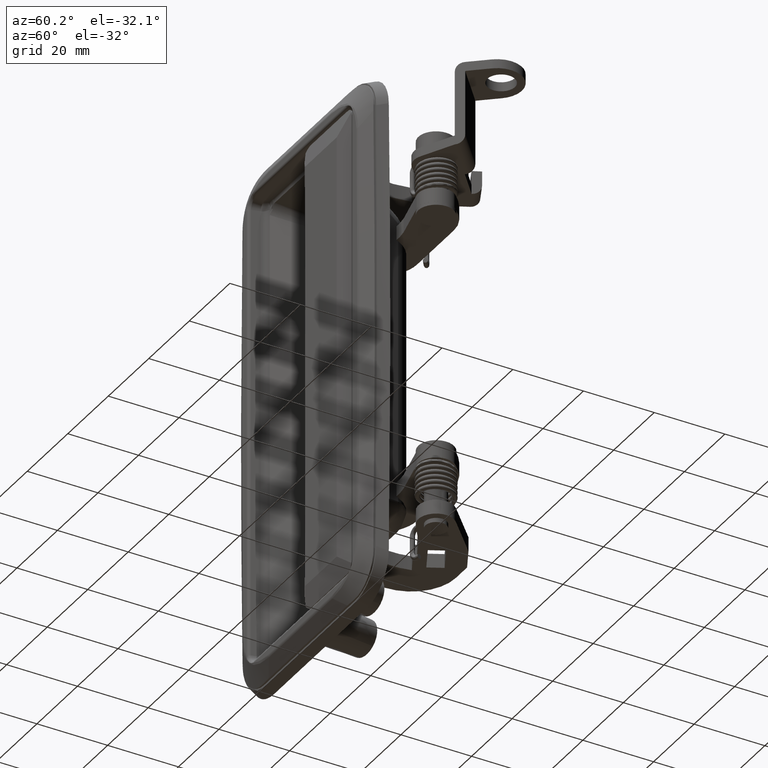
[diagram: clean part render]
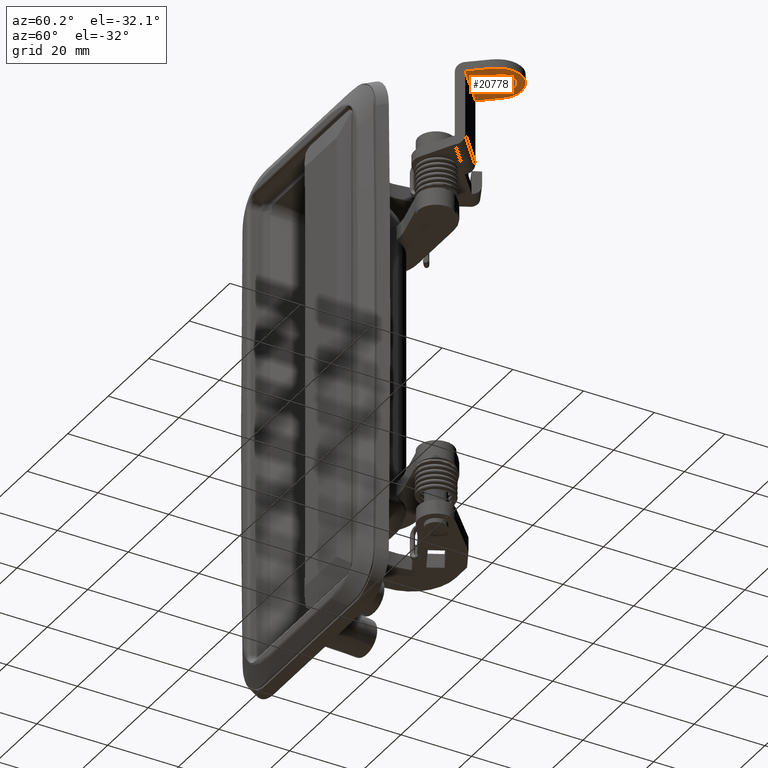
[diagram: same view with one face highlighted and labeled with its STEP entity id]
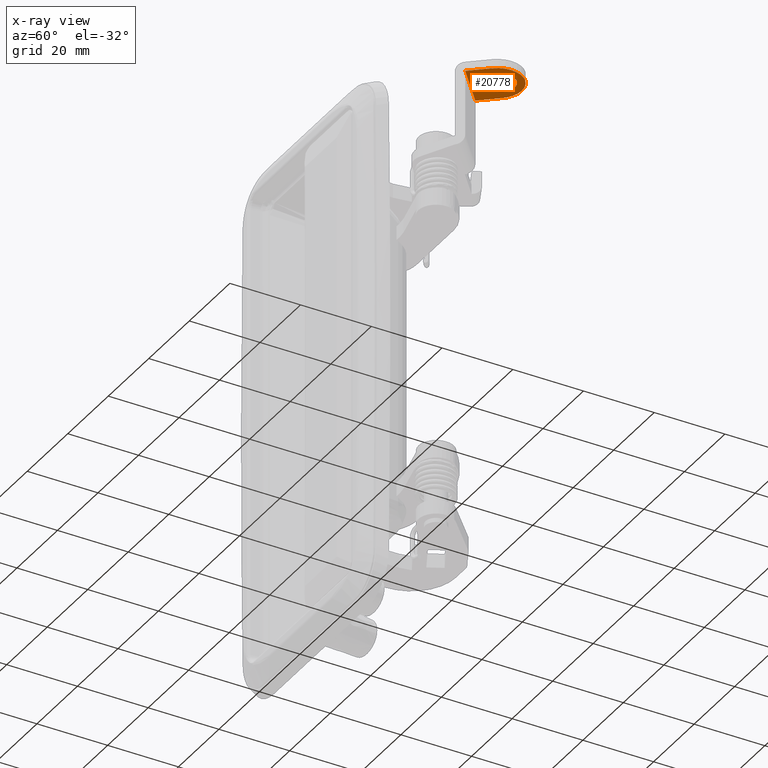
[diagram: x-ray of the same camera — body ghosted, the highlighted face saturated]
A machine part, auxiliary view. The second image highlights one B-rep face of the part: STEP entity #20778.
The next image is the same camera in x-ray: the body ghosted, the highlighted face saturated — about 0% of this face is hidden behind the body in this view.
In plain terms, the highlighted face is a freeform B-spline surface patch.
Its self-contained STEP definition (entity closure, byte-faithful):
#19741=CARTESIAN_POINT('',(44.855100000000867,28.992997394179511,69.750000000000000));
#19742=VERTEX_POINT('',#19741);
#19743=CARTESIAN_POINT('',(45.879717753151347,26.358197920806852,69.749999999975500));
#19744=VERTEX_POINT('',#19743);
#19745=CARTESIAN_POINT('',(44.855100000000867,28.992997394179511,69.750000000000000));
#19746=CARTESIAN_POINT('',(44.854572204642288,28.480640741781230,69.749999999995239));
#19747=CARTESIAN_POINT('',(45.048051156509118,27.516841556850569,69.749999999986272));
#19748=CARTESIAN_POINT('',(45.574073892312583,26.691269955914219,69.749999999978641));
#19749=CARTESIAN_POINT('',(45.879717753151347,26.358197920806852,69.749999999975500));
#19750=B_SPLINE_CURVE_WITH_KNOTS('',3,(#19745,#19746,#19747,#19748,#19749),.UNSPECIFIED.,.F.,.U.,(4,1,4),(0.000000051399220,1.536865023269515,2.892945393794267),.UNSPECIFIED.);
#19751=EDGE_CURVE('',#19742,#19744,#19750,.T.);
#19753=CARTESIAN_POINT('',(48.755100000000013,32.893000000000001,69.750000000000000));
#19754=VERTEX_POINT('',#19753);
#19755=CARTESIAN_POINT('',(48.755100000000013,32.893000000000001,69.750000000000000));
#19756=CARTESIAN_POINT('',(48.372200903307487,32.893179512731940,69.749999999999957));
#19757=CARTESIAN_POINT('',(47.734177144709442,32.798217729445632,69.750000000000114));
#19758=CARTESIAN_POINT('',(46.815914325596061,32.417902411356273,69.750000000000000));
#19759=CARTESIAN_POINT('',(45.954592091695147,31.795610905570530,69.750000000000000));
#19760=CARTESIAN_POINT('',(45.318063914322323,30.937416628721159,69.749999999999957));
#19761=CARTESIAN_POINT('',(44.937549699566823,29.950126904879980,69.750000000000071));
#19762=CARTESIAN_POINT('',(44.854982580710441,29.343981229636562,69.750000000000000));
#19763=CARTESIAN_POINT('',(44.855100000000867,28.992997394179511,69.750000000000000));
#19764=B_SPLINE_CURVE_WITH_KNOTS('',3,(#19755,#19756,#19757,#19758,#19759,#19760,#19761,#19762,#19763),.UNSPECIFIED.,.F.,.U.,(4,1,1,1,1,1,4),(0.000000156050804,1.148663109510675,1.914458710336270,2.967423935932709,4.307518243344466,5.073311903406835,6.126260871629324),.UNSPECIFIED.);
#19765=EDGE_CURVE('',#19754,#19742,#19764,.T.);
#19767=CARTESIAN_POINT('',(51.630482246848651,31.627802079193149,69.749999999975500));
#19768=VERTEX_POINT('',#19767);
#19769=CARTESIAN_POINT('',(51.630482246848651,31.627802079193149,69.749999999975500));
#19770=CARTESIAN_POINT('',(51.334868296005887,31.950830915955869,69.749999999978016));
#19771=CARTESIAN_POINT('',(50.687283390419779,32.453516932797847,69.749999999983473));
#19772=CARTESIAN_POINT('',(49.664451807296807,32.826527778760749,69.749999999992269));
#19773=CARTESIAN_POINT('',(49.024531578541321,32.893023226514323,69.749999999997883));
#19774=CARTESIAN_POINT('',(48.755100000000013,32.893000000000001,69.750000000000000));
#19775=B_SPLINE_CURVE_WITH_KNOTS('',3,(#19769,#19770,#19771,#19772,#19773,#19774),.UNSPECIFIED.,.F.,.U.,(4,1,1,4),(0.000000055470040,1.313548355360385,2.424985014419943,3.233313333999915),.UNSPECIFIED.);
#19776=EDGE_CURVE('',#19768,#19754,#19775,.T.);
#19846=CARTESIAN_POINT('',(48.755100000000013,25.093000000000000,69.750000000000000));
#19847=VERTEX_POINT('',#19846);
#19848=CARTESIAN_POINT('',(45.879717753151347,26.358197920806852,69.749999999975500));
#19849=CARTESIAN_POINT('',(46.129902712792621,26.084934860389069,69.749999999977689));
#19850=CARTESIAN_POINT('',(46.630035670955927,25.675419124001539,69.749999999981782));
#19851=CARTESIAN_POINT('',(47.610168892259978,25.213410919190750,69.749999999990351));
#19852=CARTESIAN_POINT('',(48.317220964179619,25.092717744503240,69.749999999996078));
#19853=CARTESIAN_POINT('',(48.755100000000013,25.093000000000000,69.750000000000000));
#19854=B_SPLINE_CURVE_WITH_KNOTS('',3,(#19848,#19849,#19850,#19851,#19852,#19853),.UNSPECIFIED.,.F.,.U.,(4,1,1,4),(0.000000055469990,1.111464423106240,1.919765034118517,3.233313333999907),.UNSPECIFIED.);
#19855=EDGE_CURVE('',#19744,#19847,#19854,.T.);
#19892=CARTESIAN_POINT('',(52.655099999999138,28.993002605820440,69.750000000000000));
#19893=VERTEX_POINT('',#19892);
#19894=CARTESIAN_POINT('',(52.655099999999138,28.993002605820440,69.750000000000000));
#19895=CARTESIAN_POINT('',(52.655167072373828,29.324481812350751,69.749999999997058));
#19896=CARTESIAN_POINT('',(52.566275724637052,30.017562445110570,69.749999999990365));
#19897=CARTESIAN_POINT('',(52.192461845296727,30.916569451717180,69.749999999982165));
#19898=CARTESIAN_POINT('',(51.813719372189773,31.427861998738852,69.749999999977447));
#19899=CARTESIAN_POINT('',(51.630482246848651,31.627802079193149,69.749999999975500));
#19900=B_SPLINE_CURVE_WITH_KNOTS('',3,(#19894,#19895,#19896,#19897,#19898,#19899),.UNSPECIFIED.,.F.,.U.,(4,1,1,4),(0.000000051399720,0.994460980333550,2.079303232417504,2.892945393794322),.UNSPECIFIED.);
#19901=EDGE_CURVE('',#19893,#19768,#19900,.T.);
#19903=CARTESIAN_POINT('',(48.755100000000013,25.093000000000000,69.750000000000000));
#19904=CARTESIAN_POINT('',(49.074172418368249,25.092928852754682,69.750000000000057));
#19905=CARTESIAN_POINT('',(49.648464320256089,25.163874178708230,69.749999999999758));
#19906=CARTESIAN_POINT('',(50.403140212330179,25.433925871448750,69.750000000000227));
#19907=CARTESIAN_POINT('',(51.039506334803463,25.804820132643410,69.749999999999943));
#19908=CARTESIAN_POINT('',(51.597849676007250,26.286465754327580,69.750000000000014));
#19909=CARTESIAN_POINT('',(52.150325562026708,26.994077447880031,69.749999999999957));
#19910=CARTESIAN_POINT('',(52.555403788051827,27.908187792634479,69.750000000000000));
#19911=CARTESIAN_POINT('',(52.655206508442852,28.642023433421340,69.749999999999957));
#19912=CARTESIAN_POINT('',(52.655099999999138,28.993002605820440,69.750000000000000));
#19913=B_SPLINE_CURVE_WITH_KNOTS('',3,(#19903,#19904,#19905,#19906,#19907,#19908,#19909,#19910,#19911,#19912),.UNSPECIFIED.,.F.,.U.,(4,1,1,1,1,1,1,4),(0.000000156053880,0.957227897716240,1.723018267150602,2.393110199053564,3.158835745155892,3.924614588197220,5.073311903407009,6.126260871629288),.UNSPECIFIED.);
#19914=EDGE_CURVE('',#19847,#19893,#19913,.T.);
#20690=CARTESIAN_POINT('',(49.167973088738599,18.594694321446202,69.750000000000000));
#20691=VERTEX_POINT('',#20690);
#20704=CARTESIAN_POINT('',(38.443154870225037,27.593520123031450,69.750000000000000));
#20705=VERTEX_POINT('',#20704);
#20711=CARTESIAN_POINT('',(49.167973088738599,18.594694321446202,69.750000000000000));
#20712=CARTESIAN_POINT('',(38.443154870225037,27.593520123031450,69.750000000000000));
#20713=QUASI_UNIFORM_CURVE('',1,(#20711,#20712),.UNSPECIFIED.,.F.,.U.);
#20714=EDGE_CURVE('',#20691,#20705,#20713,.T.);
#20719=CARTESIAN_POINT('',(55.944186559190058,17.763939732573998,69.750000000000000));
#20720=CARTESIAN_POINT('',(55.944186559190058,36.057173502685977,69.750000000000000));
#20721=CARTESIAN_POINT('',(37.610565727903037,17.763939732573998,69.750000000000000));
#20722=CARTESIAN_POINT('',(37.610565727903037,36.057173502685977,69.750000000000000));
#20723=B_SPLINE_SURFACE_WITH_KNOTS('',1,1,((#20719,#20721),(#20720,#20722)),.UNSPECIFIED.,.F.,.F.,.U.,(2,2),(2,2),(0.0,18.293233770111978),(0.0,18.333620831287021),.UNSPECIFIED.);
#20724=CARTESIAN_POINT('',(53.474599923372701,23.726999908681400,69.750000000000000));
#20725=VERTEX_POINT('',#20724);
#20726=CARTESIAN_POINT('',(49.167973088738599,18.594694321446202,69.750000000000000));
#20727=CARTESIAN_POINT('',(53.474599923372701,23.726999908681400,69.750000000000000));
#20728=QUASI_UNIFORM_CURVE('',1,(#20726,#20727),.UNSPECIFIED.,.F.,.U.);
#20729=EDGE_CURVE('',#20691,#20725,#20728,.T.);
#20730=ORIENTED_EDGE('',*,*,#20729,.F.);
#20731=ORIENTED_EDGE('',*,*,#20714,.T.);
#20732=CARTESIAN_POINT('',(42.706096217814462,32.673679734979899,69.750000000000000));
#20733=VERTEX_POINT('',#20732);
#20734=CARTESIAN_POINT('',(42.706096217814462,32.673679734979899,69.750000000000000));
#20735=CARTESIAN_POINT('',(38.443154870225037,27.593520123031450,69.750000000000000));
#20736=QUASI_UNIFORM_CURVE('',1,(#20734,#20735),.UNSPECIFIED.,.F.,.U.);
#20737=EDGE_CURVE('',#20733,#20705,#20736,.T.);
#20738=ORIENTED_EDGE('',*,*,#20737,.F.);
#20739=CARTESIAN_POINT('',(52.585624013766036,33.610994566540192,69.749999999999986));
#20740=VERTEX_POINT('',#20739);
#20741=CARTESIAN_POINT('',(52.585624013766036,33.610994566540192,69.749999999999986));
#20742=CARTESIAN_POINT('',(52.143832794127327,33.978228358537272,69.749999999999957));
#20743=CARTESIAN_POINT('',(51.266598701432443,34.540425371722257,69.750000000000099));
#20744=CARTESIAN_POINT('',(50.018706562409498,34.993880233847868,69.750000000000000));
#20745=CARTESIAN_POINT('',(48.831397262416878,35.220422189003592,69.749999999999844));
#20746=CARTESIAN_POINT('',(47.648476492352870,35.254180149454839,69.750000000000469));
#20747=CARTESIAN_POINT('',(46.481320375753107,35.063030105028183,69.749999999999076));
#20748=CARTESIAN_POINT('',(45.414608047359842,34.714028032256792,69.750000000001805));
#20749=CARTESIAN_POINT('',(44.099528995461860,34.056263010652813,69.749999999998352));
#20750=CARTESIAN_POINT('',(43.198418025767118,33.273026418591563,69.750000000001108));
#20751=CARTESIAN_POINT('',(42.706096217814462,32.673679734979899,69.750000000000000));
#20752=B_SPLINE_CURVE_WITH_KNOTS('',3,(#20741,#20742,#20743,#20744,#20745,#20746,#20747,#20748,#20749,#20750,#20751),.UNSPECIFIED.,.F.,.U.,(4,1,1,1,1,1,1,1,4),(0.000000205684765,1.723456845466329,3.102229959260190,3.963968871210636,5.342764275913442,6.635305175960209,7.497031121426089,8.703468311816478,11.030123518167180),.UNSPECIFIED.);
#20753=EDGE_CURVE('',#20740,#20733,#20752,.T.);
#20754=ORIENTED_EDGE('',*,*,#20753,.F.);
#20755=CARTESIAN_POINT('',(53.474599923372701,23.726999908681400,69.750000000000000));
#20756=CARTESIAN_POINT('',(53.751581393426640,24.057035058474391,69.749999999999986));
#20757=CARTESIAN_POINT('',(54.277199915466902,24.815871239426080,69.749999999999986));
#20758=CARTESIAN_POINT('',(54.874416796702157,26.193907326266149,69.750000000000043));
#20759=CARTESIAN_POINT('',(55.140217676590552,27.645798189231019,69.749999999999773));
#20760=CARTESIAN_POINT('',(55.096398199810807,29.202071869805430,69.750000000000696));
#20761=CARTESIAN_POINT('',(54.701823272288657,30.833719957171990,69.749999999998678));
#20762=CARTESIAN_POINT('',(53.825660456197568,32.406536075376103,69.750000000000611));
#20763=CARTESIAN_POINT('',(52.983314814666983,33.280615067332427,69.749999999999901));
#20764=CARTESIAN_POINT('',(52.585624013766036,33.610994566540192,69.749999999999986));
#20765=B_SPLINE_CURVE_WITH_KNOTS('',3,(#20755,#20756,#20757,#20758,#20759,#20760,#20761,#20762,#20763,#20764),.UNSPECIFIED.,.F.,.U.,(4,1,1,1,1,1,1,4),(0.000000205660589,1.292593370897274,2.757532432860705,4.481031656401251,5.687360179465358,7.410841656079589,9.479019490571314,11.030123518167381),.UNSPECIFIED.);
#20766=EDGE_CURVE('',#20725,#20740,#20765,.T.);
#20767=ORIENTED_EDGE('',*,*,#20766,.F.);
#20768=EDGE_LOOP('',(#20730,#20731,#20738,#20754,#20767));
#20769=FACE_OUTER_BOUND('',#20768,.T.);
#20770=ORIENTED_EDGE('',*,*,#19914,.T.);
#20771=ORIENTED_EDGE('',*,*,#19901,.T.);
#20772=ORIENTED_EDGE('',*,*,#19776,.T.);
#20773=ORIENTED_EDGE('',*,*,#19765,.T.);
#20774=ORIENTED_EDGE('',*,*,#19751,.T.);
#20775=ORIENTED_EDGE('',*,*,#19855,.T.);
#20776=EDGE_LOOP('',(#20770,#20771,#20772,#20773,#20774,#20775));
#20777=FACE_BOUND('',#20776,.T.);
#20778=ADVANCED_FACE('',(#20769,#20777),#20723,.F.);